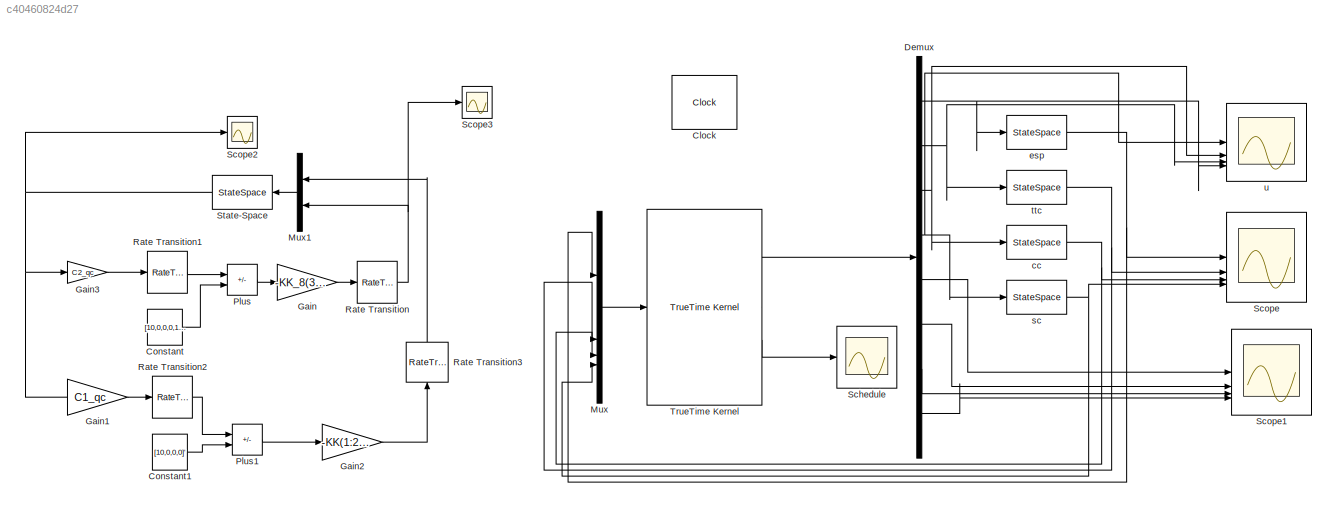
MODEL slx_c40460824d27
KIND model
CONFIG AbsTol = auto
CONFIG EnableMultiTasking = on
CONFIG FixedStep = auto
CONFIG InitFcn = clear functions\n% initialize\n\nm = 5;       % total mass (kg)\ng = 9.8;     % gravitational constant (m/s^2)\nIx = 10;     % moment of Inertia (N/m)\nIy = 10;\nIz = 10;\nA_qc = [ 0. ,  1. ,  0. ,  0. ,  0. ,  0. ,  0. ,  0. ,  0. ,  0. ,  0. , 0. ;\n         0. ,  0. ,  0. ,  0. ,  0. ,  0. ,  0. ,  0. ,  0. ,  0. ,  0. , 0. ;\n         0. ,  0. ,  0. ,  1. ,  0. ,  0. ,  0. ,  0. ,  0. ,  0. ,  0. , 0. ;...<+3245ch>
CONFIG MaxStep = auto
CONFIG MinStep = auto
CONFIG RelTol = 1e-3
CONFIG SampleTimeConstraint = Unconstrained
CONFIG SolverName = ode45
CONFIG StartTime = 0.0
CONFIG StopTime = 10
BLOCK [Clock] Clock
  Commented = on
  DisplayTime = on
BLOCK [Constant] Constant
  SampleTime = 0.02
  Value = [10,0,0,0,10,0,0,0]'
BLOCK [Constant] Constant1
  SampleTime = 0.02
  Value = [10,0,0,0]'
BLOCK [Demux] Demux
  Commented = on
  DisplayOption = none
  Outputs = 8
BLOCK [Gain] Gain
  Gain = -KK_8(3:4,5:12)
  Multiplication = Matrix(K*u) (u vector)
BLOCK [Gain] Gain1
  Gain = C1_qc
  Multiplication = Matrix(K*u) (u vector)
BLOCK [Gain] Gain2
  Gain = -KK(1:2,1:4)
  Multiplication = Matrix(K*u) (u vector)
BLOCK [Gain] Gain3
  Gain = C2_qc
  Multiplication = Matrix(K*u) (u vector)
  NameLocation = top
BLOCK [Mux] Mux
  Commented = on
  DisplayOption = bar
BLOCK [Mux] Mux1
  DisplayOption = bar
  Inputs = 2
  NameLocation = top
BLOCK [Sum] Plus
  IconShape = rectangular
  Inputs = +-
BLOCK [Sum] Plus1
  IconShape = rectangular
  Inputs = +-
BLOCK [RateTransition] Rate Transition
  InitialCondition = zeros(2,1)
BLOCK [RateTransition] Rate Transition1
  InitialCondition = zeros(8,1)
  OutPortSampleTime = 0.008
BLOCK [RateTransition] Rate Transition2
  InitialCondition = zeros(4,1)
  OutPortSampleTime = 0.02
BLOCK [RateTransition] Rate Transition3
  InitialCondition = zeros(2,1)
  NameLocation = right
BLOCK [Scope] Schedule
  Commented = on
  Floating = off
  NumInputPorts = 1
  ScopeSpecificationString = Simulink.scopes.TimeScopeBlockCfg('CurrentConfiguration', extmgr.ConfigurationSet(extmgr.Configuration('Core','General UI',true,'FigureColor',[0.156862745098039 0.156862745098039 0.156862745098039]),extmgr.Configuration('Core','Source UI',true),extmgr.Configuration('Sources','WiredSimulink',true,'DataLogging',true,'DataLoggingVariableName','ry','DataLoggingSaveFormat','StructureWithTime','DataLogg...<+2849ch>
BLOCK [Scope] Scope
  Commented = on
  Floating = off
  NumInputPorts = 4
  ScopeSpecificationString = Simulink.scopes.TimeScopeBlockCfg('CurrentConfiguration', extmgr.ConfigurationSet(extmgr.Configuration('Core','General UI',true),extmgr.Configuration('Core','Source UI',true),extmgr.Configuration('Sources','WiredSimulink',true,'DataLoggingVariableName','ScopeData1'),extmgr.Configuration('Visuals','Time Domain',true,'SerializedDisplays',{struct('MinYLimReal','0.1','MaxYLimReal','0.3','YLabelReal','...<+3417ch>
BLOCK [Scope] Scope1
  Commented = on
  Floating = off
  NumInputPorts = 4
  ScopeSpecificationString = Simulink.scopes.TimeScopeBlockCfg('CurrentConfiguration', extmgr.ConfigurationSet(extmgr.Configuration('Core','General UI',true),extmgr.Configuration('Core','Source UI',true),extmgr.Configuration('Sources','WiredSimulink',true,'DataLoggingVariableName','ScopeData1'),extmgr.Configuration('Visuals','Time Domain',true,'SerializedDisplays',{struct('MinYLimReal','-0.00000006','MaxYLimReal','0.0000005',...<+3474ch>
BLOCK [Scope] Scope2
  Floating = off
  NumInputPorts = 1
  ScopeSpecificationString = Simulink.scopes.TimeScopeBlockCfg('CurrentConfiguration', extmgr.ConfigurationSet(extmgr.Configuration('Core','General UI',true),extmgr.Configuration('Core','Source UI',true),extmgr.Configuration('Sources','WiredSimulink',true,'DataLoggingVariableName','ScopeData1'),extmgr.Configuration('Visuals','Time Domain',true,'SerializedDisplays',{struct('MinYLimReal','-2.38003','MaxYLimReal','12.55911','YLa...<+1606ch>
BLOCK [Scope] Scope3
  Floating = off
  NumInputPorts = 1
  ScopeSpecificationString = Simulink.scopes.TimeScopeBlockCfg('CurrentConfiguration', extmgr.ConfigurationSet(extmgr.Configuration('Core','General UI',true),extmgr.Configuration('Core','Source UI',true),extmgr.Configuration('Sources','WiredSimulink',true,'DataLoggingVariableName','ScopeData2'),extmgr.Configuration('Visuals','Time Domain',true,'SerializedDisplays',{struct('MinYLimReal','-38.98352','MaxYLimReal','38.98352','YL...<+1481ch>
BLOCK [StateSpace] State-Space
  A = A_qc
  B = B_qc
  C = C_qc
  D = D_qc
  InitialCondition = zeros(12,1)
BLOCK [Reference] TrueTime Kernel  REF=truetime/TrueTime Kernel  (lib defined in slx_0362a698a4ec)
  Commented = on
  SourceBlock = truetime/TrueTime Kernel
  UserDataPersistent = on
BLOCK [StateSpace] cc
  A = A_cc
  B = B_cc
  C = C_cc
  Commented = on
  D = D_cc
  InitialCondition = sharedmem.x0{3}
  NameLocation = top
BLOCK [StateSpace] esp
  A = A_esp
  B = B_esp
  C = C_esp
  Commented = on
  D = D_esp
  InitialCondition = sharedmem.x0{1}
  NameLocation = top
BLOCK [StateSpace] sc
  A = A_sc
  B = B_sc
  C = C_sc
  Commented = on
  D = D_sc
  InitialCondition = sharedmem.x0{4}
  NameLocation = top
BLOCK [StateSpace] ttc
  A = A_ttc
  B = B_ttc
  C = C_ttc
  Commented = on
  D = D_ttc
  InitialCondition = sharedmem.x0{2}
  NameLocation = top
BLOCK [Scope] u
  Commented = on
  Floating = off
  NumInputPorts = 4
  ScopeSpecificationString = Simulink.scopes.TimeScopeBlockCfg('CurrentConfiguration', extmgr.ConfigurationSet(extmgr.Configuration('Core','General UI',true,'FigureColor',[0.156862745098039 0.156862745098039 0.156862745098039]),extmgr.Configuration('Core','Source UI',true),extmgr.Configuration('Sources','WiredSimulink',true,'DataLoggingSaveFormat','StructureWithTime','DataLoggingDecimation','1','DataLoggingDecimateData',true)...<+5848ch>
LINE Constant1:1 -> Plus1:2
LINE Constant:1 -> Plus:2
NET Demux:1 -> esp:1, u:4
NET Demux:2 -> ttc:1, u:3
NET Demux:3 -> cc:1, u:2
NET Demux:4 -> sc:1, u:1
LINE Demux:5 -> Scope1:1
LINE Demux:6 -> Scope1:2
LINE Demux:7 -> Scope1:3
LINE Demux:8 -> Scope1:4
LINE Gain1:1 -> Rate Transition2:1
LINE Gain2:1 -> Rate Transition3:1
LINE Gain3:1 -> Rate Transition1:1
LINE Gain:1 -> Rate Transition:1
LINE Mux1:1 -> State-Space:1
LINE Mux:1 -> TrueTime Kernel:1
LINE Plus1:1 -> Gain2:1
LINE Plus:1 -> Gain:1
LINE Rate Transition1:1 -> Plus:1
LINE Rate Transition2:1 -> Plus1:1
LINE Rate Transition3:1 -> Mux1:1
NET Rate Transition:1 -> Mux1:2, Scope3:1
NET State-Space:1 -> Gain1:1, Gain3:1, Scope2:1
LINE TrueTime Kernel:1 -> Demux:1
LINE TrueTime Kernel:2 -> Schedule:1
NET cc:1 -> Mux:3, Scope:3
NET esp:1 -> Mux:1, Scope:1
NET sc:1 -> Mux:4, Scope:4
NET ttc:1 -> Mux:2, Scope:2
note: NET lines group one-source signal fan-out (src -> all destinations, sorted); 1:1 wires keep LINE
